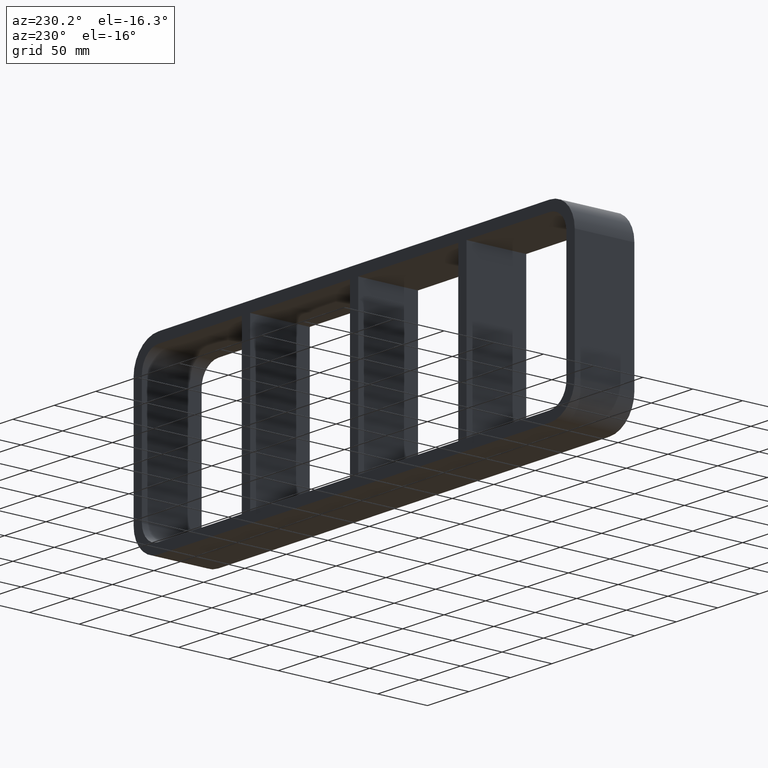
[diagram: clean part render]
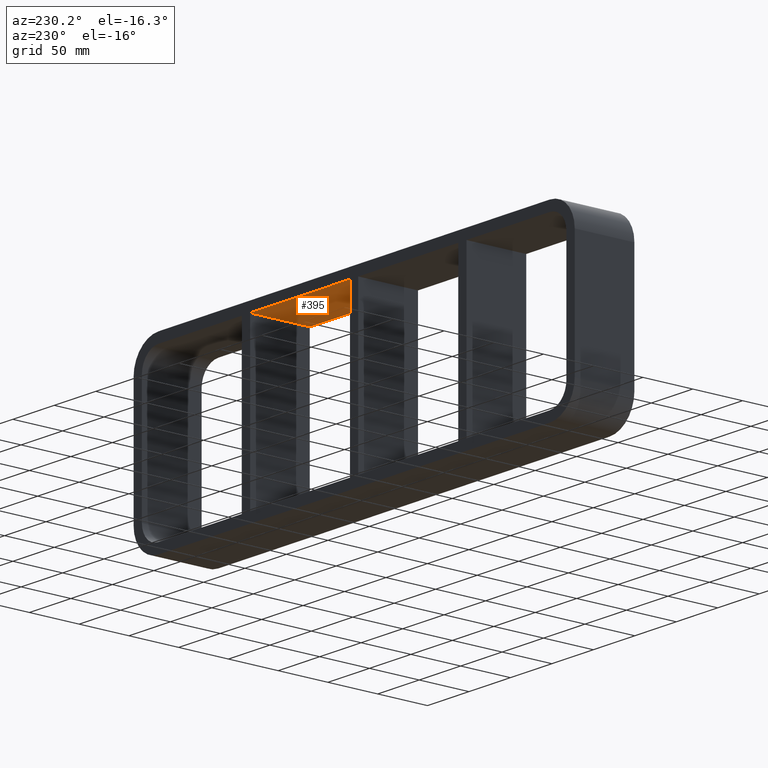
[diagram: same view with one face highlighted and labeled with its STEP entity id]
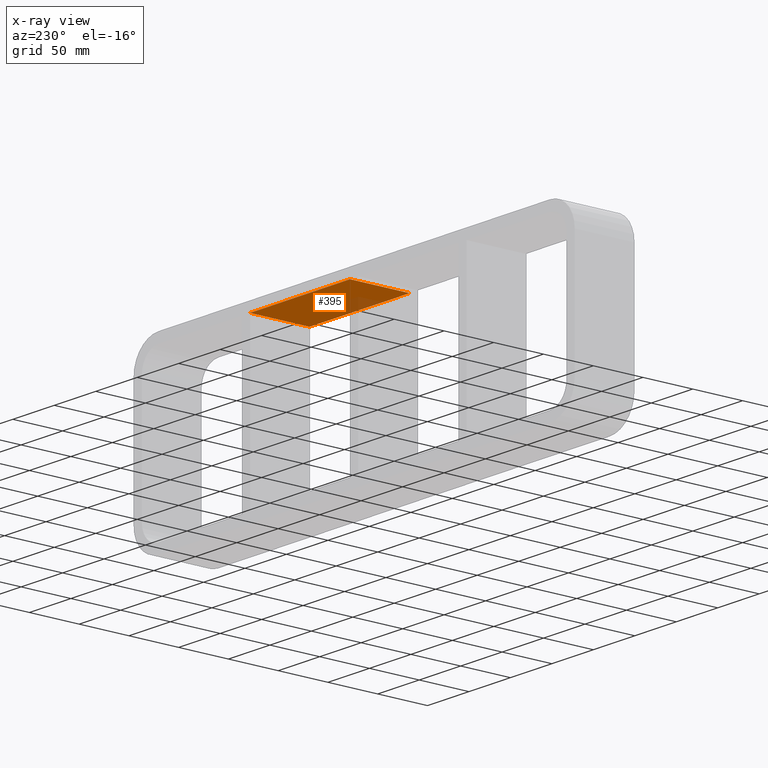
[diagram: x-ray of the same camera — body ghosted, the highlighted face saturated]
A machine part, auxiliary view. The second image highlights one B-rep face of the part: STEP entity #395.
The next image is the same camera in x-ray: the body ghosted, the highlighted face saturated — about 8% of this face is hidden behind the body in this view.
In plain terms, the highlighted planar face has unit normal (0, 0, 1).
Its self-contained STEP definition (entity closure, byte-faithful):
#75=CARTESIAN_POINT('',(125.49999999999869,-3.0,79.750000000000014));
#76=VERTEX_POINT('',#75);
#83=CARTESIAN_POINT('',(125.49999999999869,57.0,79.750000000000014));
#84=VERTEX_POINT('',#83);
#85=CARTESIAN_POINT('',(125.49999999999866,57.000000000000007,79.750000000000014));
#86=DIRECTION('',(0.0,-1.0,0.0));
#87=VECTOR('',#86,60.000000000000007);
#88=LINE('',#85,#87);
#89=EDGE_CURVE('',#84,#76,#88,.T.);
#193=CARTESIAN_POINT('',(5.000000000007283,-3.0,79.750000000000014));
#194=VERTEX_POINT('',#193);
#211=CARTESIAN_POINT('',(5.000000000007283,57.0,79.750000000000014));
#212=VERTEX_POINT('',#211);
#219=CARTESIAN_POINT('',(5.000000000007283,-3.0,79.750000000000014));
#220=DIRECTION('',(0.0,1.0,0.0));
#221=VECTOR('',#220,60.000000000000007);
#222=LINE('',#219,#221);
#223=EDGE_CURVE('',#194,#212,#222,.T.);
#374=CARTESIAN_POINT('',(-256.0,0.0,79.750000000000014));
#375=DIRECTION('',(0.0,0.0,1.0));
#376=DIRECTION('',(1.0,0.0,0.0));
#377=AXIS2_PLACEMENT_3D('',#374,#375,#376);
#378=PLANE('',#377);
#379=ORIENTED_EDGE('',*,*,#89,.T.);
#380=CARTESIAN_POINT('',(5.000000000007276,-3.0,79.750000000000014));
#381=DIRECTION('',(1.0,0.0,0.0));
#382=VECTOR('',#381,120.49999999999142);
#383=LINE('',#380,#382);
#384=EDGE_CURVE('',#194,#76,#383,.T.);
#385=ORIENTED_EDGE('',*,*,#384,.F.);
#386=ORIENTED_EDGE('',*,*,#223,.T.);
#387=CARTESIAN_POINT('',(125.49999999999869,57.0,79.750000000000014));
#388=DIRECTION('',(-1.0,0.0,0.0));
#389=VECTOR('',#388,120.49999999999142);
#390=LINE('',#387,#389);
#391=EDGE_CURVE('',#84,#212,#390,.T.);
#392=ORIENTED_EDGE('',*,*,#391,.F.);
#393=EDGE_LOOP('',(#379,#385,#386,#392));
#394=FACE_OUTER_BOUND('',#393,.T.);
#395=ADVANCED_FACE('',(#394),#378,.F.);